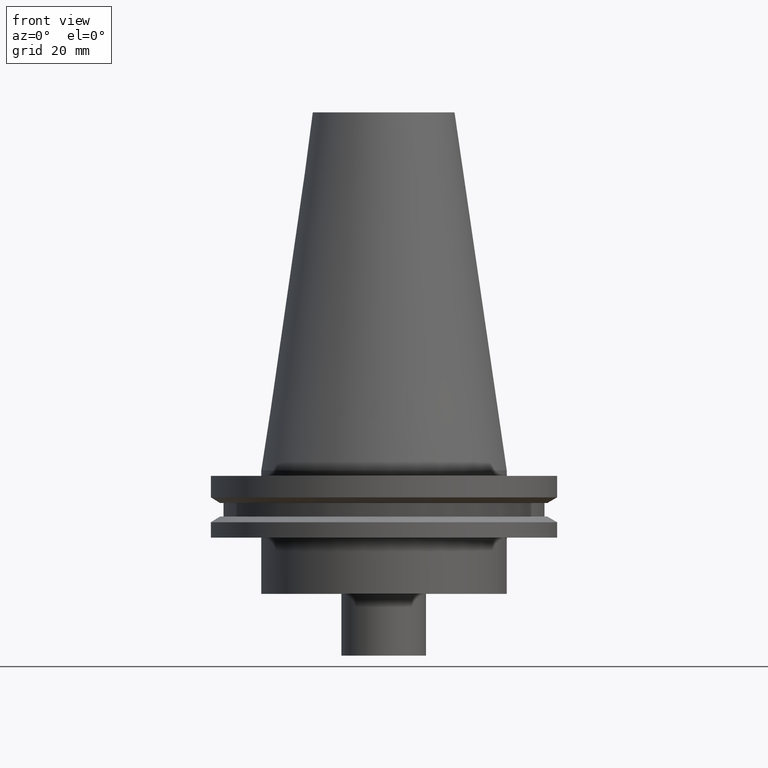
[diagram: clean part render]
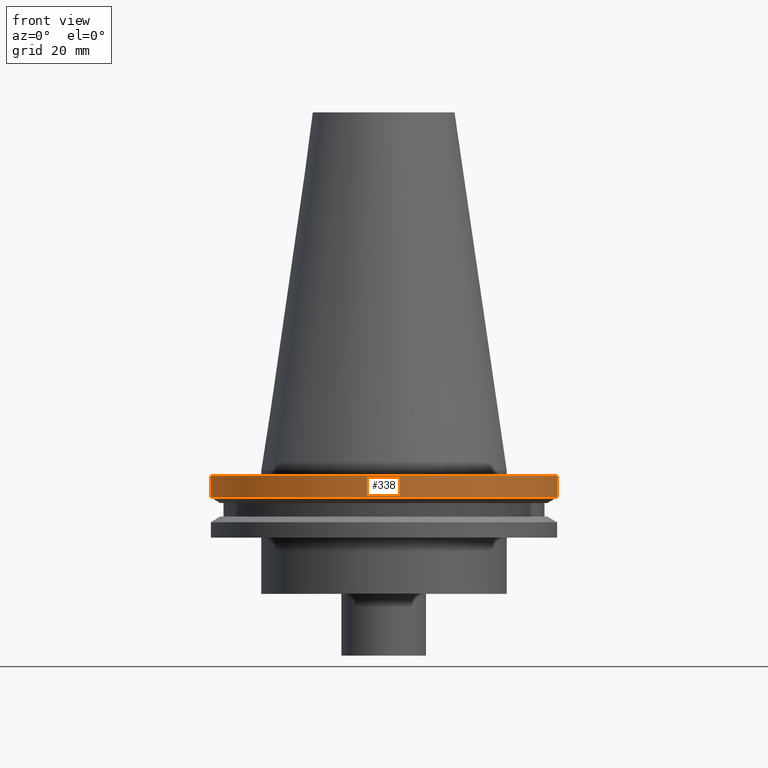
[diagram: same view with one face highlighted and labeled with its STEP entity id]
A machine part, front view. The second image highlights one B-rep face of the part: STEP entity #338.
In plain terms, the highlighted cylindrical surface (bore or boss wall) has radius 49.215 mm, axis along (-0, -0, 1).
Its self-contained STEP definition (entity closure, byte-faithful):
#27 = DIRECTION ( 'NONE',  ( -0.000000000000000000, -0.000000000000000000, 1.000000000000000000 ) ) ;
#45 = CARTESIAN_POINT ( 'NONE',  ( 49.21500000000000341, 0.000000000000000000, -7.602389855251287187 ) ) ;
#52 = ORIENTED_EDGE ( 'NONE', *, *, #278, .T. ) ;
#64 = ORIENTED_EDGE ( 'NONE', *, *, #202, .F. ) ;
#105 = CARTESIAN_POINT ( 'NONE',  ( 0.000000000000000000, 0.000000000000000000, 101.5999999999999943 ) ) ;
#112 = EDGE_LOOP ( 'NONE', ( #64 ) ) ;
#123 = AXIS2_PLACEMENT_3D ( 'NONE', #105, #282, #228 ) ;
#137 = FACE_OUTER_BOUND ( 'NONE', #295, .T. ) ;
#152 = VERTEX_POINT ( 'NONE', #45 ) ;
#155 = DIRECTION ( 'NONE',  ( -0.000000000000000000, -0.000000000000000000, 1.000000000000000000 ) ) ;
#158 = DIRECTION ( 'NONE',  ( 1.000000000000000000, 0.000000000000000000, 0.000000000000000000 ) ) ;
#177 = VERTEX_POINT ( 'NONE', #316 ) ;
#182 = CARTESIAN_POINT ( 'NONE',  ( 0.000000000000000000, 0.000000000000000000, -1.499999999999987566 ) ) ;
#183 = CIRCLE ( 'NONE', #328, 49.21500000000000341 ) ;
#202 = EDGE_CURVE ( 'NONE', #177, #177, #347, .T. ) ;
#228 = DIRECTION ( 'NONE',  ( 1.000000000000000000, 0.000000000000000000, 0.000000000000000000 ) ) ;
#233 = CYLINDRICAL_SURFACE ( 'NONE', #123, 49.21499999999999631 ) ;
#275 = DIRECTION ( 'NONE',  ( 1.000000000000000000, 0.000000000000000000, 0.000000000000000000 ) ) ;
#278 = EDGE_CURVE ( 'NONE', #152, #152, #183, .T. ) ;
#282 = DIRECTION ( 'NONE',  ( -0.000000000000000000, -0.000000000000000000, 1.000000000000000000 ) ) ;
#283 = AXIS2_PLACEMENT_3D ( 'NONE', #182, #155, #158 ) ;
#295 = EDGE_LOOP ( 'NONE', ( #52 ) ) ;
#300 = CARTESIAN_POINT ( 'NONE',  ( 0.000000000000000000, 0.000000000000000000, -7.602389855251287187 ) ) ;
#316 = CARTESIAN_POINT ( 'NONE',  ( 49.21499999999999631, 0.000000000000000000, -1.499999999999987566 ) ) ;
#328 = AXIS2_PLACEMENT_3D ( 'NONE', #300, #27, #275 ) ;
#338 = ADVANCED_FACE ( 'NONE', ( #342, #137 ), #233, .T. ) ;
#342 = FACE_OUTER_BOUND ( 'NONE', #112, .T. ) ;
#347 = CIRCLE ( 'NONE', #283, 49.21499999999999631 ) ;